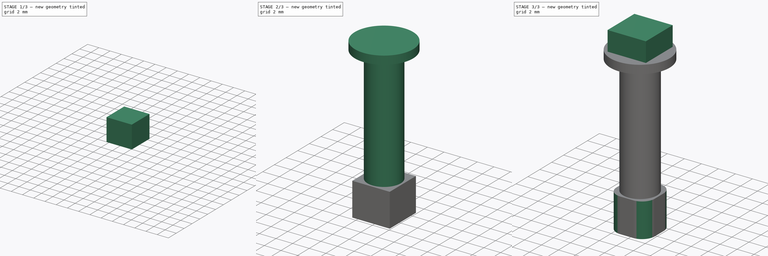
[diagram: build sequence overview — one tinted view per stage of 3, left to right]
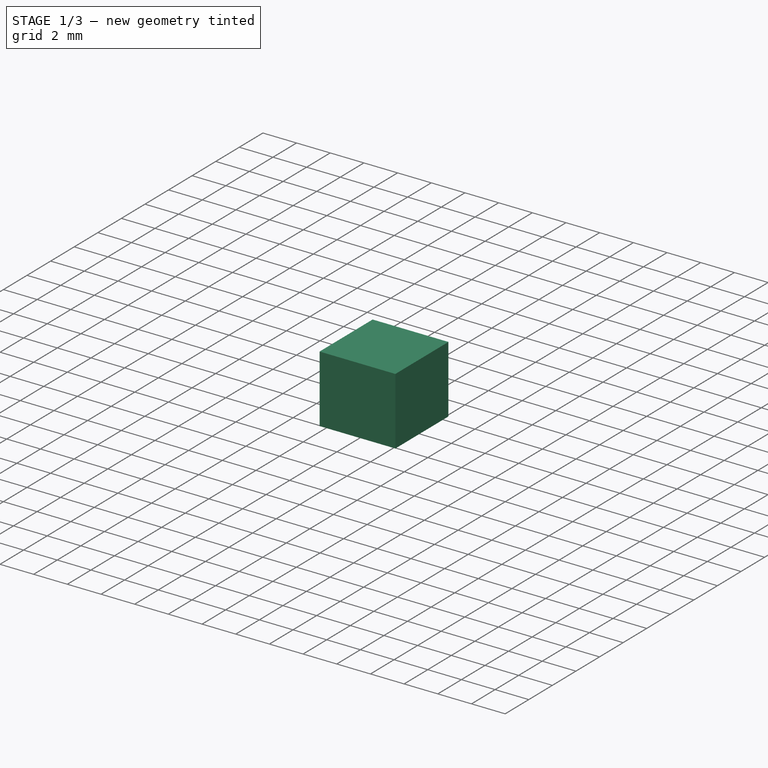
[diagram: stage 1 of 3 — iso view after this stage's code; geometry added in this stage tinted green]
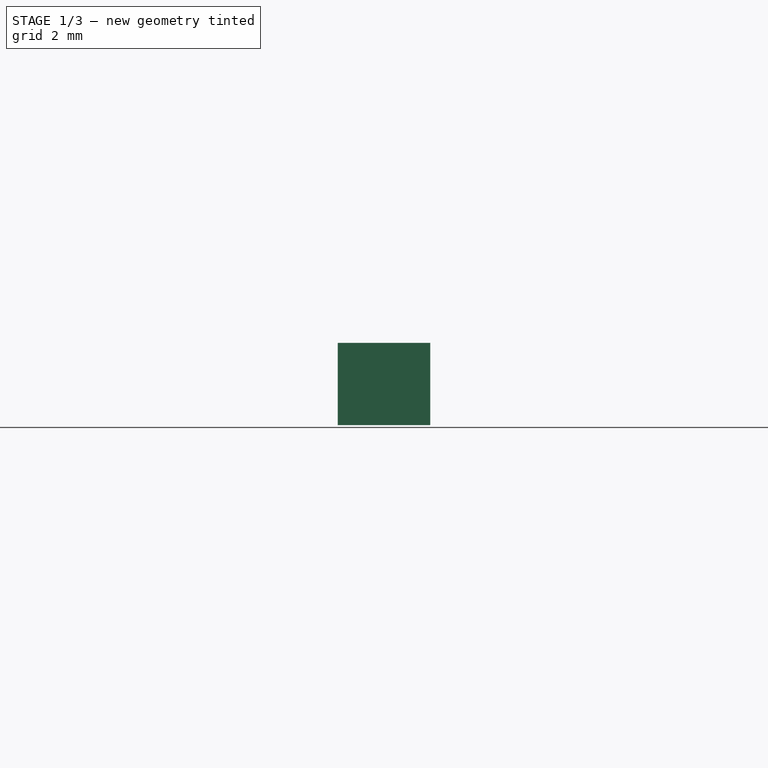
[diagram: stage 1 of 3 — front view after this stage's code; geometry added in this stage tinted green]
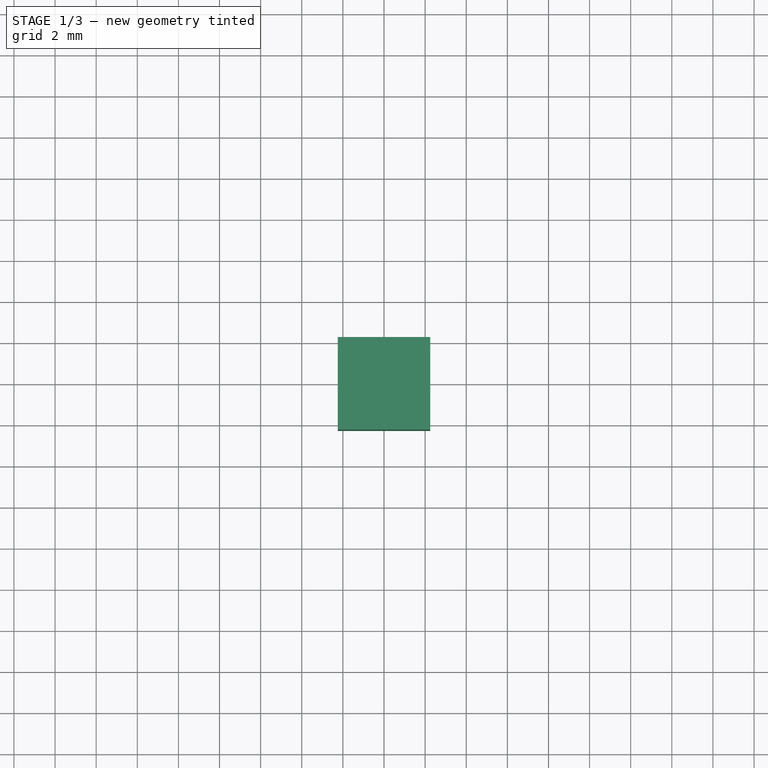
[diagram: stage 1 of 3 — top view after this stage's code; geometry added in this stage tinted green]
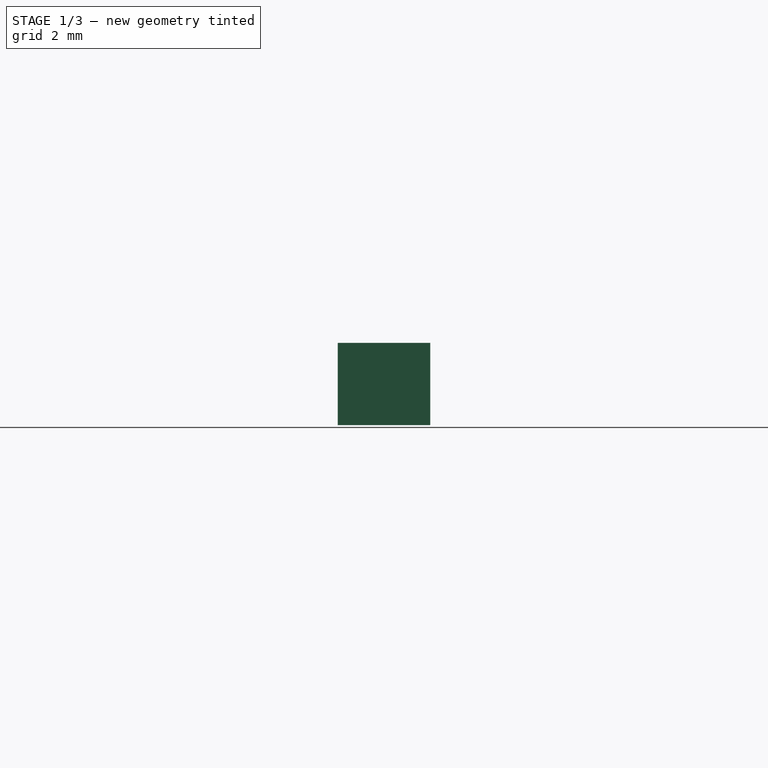
[diagram: stage 1 of 3 — right view after this stage's code; geometry added in this stage tinted green]
FCSTD DOCUMENT  (FreeCAD 0.16R)
Label: Base
License: All rights reserved
LicenseURL: http://en.wikipedia.org/wiki/All_rights_reserved
objects: Sketcher::SketchObject×5, PartDesign::Pad×4, PartDesign::Pocket×1, PartDesign::Fillet×1
note: 16 computed .brp shape members not serialized (recipe doc carries the construction recipe); baked Part::Feature solids carry a one-line shape summary decoded from their .brp

FEATURE [Sketcher::SketchObject] Sketch
  sketch-geometry (4):
    g0: LineSegment StartX=-2.25 StartY=2.25 StartZ=0 EndX=2.25 EndY=2.25 EndZ=0
    g1: LineSegment StartX=2.25 StartY=2.25 StartZ=0 EndX=2.25 EndY=-2.25 EndZ=0
    g2: LineSegment StartX=2.25 StartY=-2.25 StartZ=0 EndX=-2.25 EndY=-2.25 EndZ=0
    g3: LineSegment StartX=-2.25 StartY=-2.25 StartZ=0 EndX=-2.25 EndY=2.25 EndZ=0
  constraints (12):
    c: Coincident(g0,g1)
    c: Coincident(g1,g2)
    c: Coincident(g2,g3)
    c: Coincident(g3,g0)
    c: Horizontal(g0)
    c: Horizontal(g2)
    c: Vertical(g1)
    c: Vertical(g3)
    c: Distance(g0) = 4.5
    c: Distance(g3) = 4.5
    c: DistanceY(g-1,g2) = -2.25
    c: DistanceX(g-2,g0) = 2.25
FEATURE [PartDesign::Pad] Pad
  Length = 4
  Length2 = 100
  Sketch = -> Sketch
  Type = 0
FEATURE [Sketcher::SketchObject] Sketch001
  Placement = pos=(0,0,0) rot=(1,0,0;3.14159rad)
  Support = -> Pad [Face5]
  sketch-geometry (4):
    g0: LineSegment StartX=-1.3 StartY=1.3 StartZ=0 EndX=1.3 EndY=1.3 EndZ=0
    g1: LineSegment StartX=1.3 StartY=1.3 StartZ=0 EndX=1.3 EndY=-1.3 EndZ=0
    g2: LineSegment StartX=1.3 StartY=-1.3 StartZ=0 EndX=-1.3 EndY=-1.3 EndZ=0
    g3: LineSegment StartX=-1.3 StartY=-1.3 StartZ=0 EndX=-1.3 EndY=1.3 EndZ=0
  constraints (12):
    c: Coincident(g0,g1)
    c: Coincident(g1,g2)
    c: Coincident(g2,g3)
    c: Coincident(g3,g0)
    c: Horizontal(g0)
    c: Horizontal(g2)
    c: Vertical(g1)
    c: Vertical(g3)
    c: Distance(g2) = 2.6
    c: Distance(g1) = 2.6
    c: DistanceY(g-1,g1) = -1.3
    c: DistanceX(g-2,g2) = -1.3
FEATURE [PartDesign::Pocket] Pocket
  Length = 2.4
  Sketch = -> Sketch001
  Type = 0
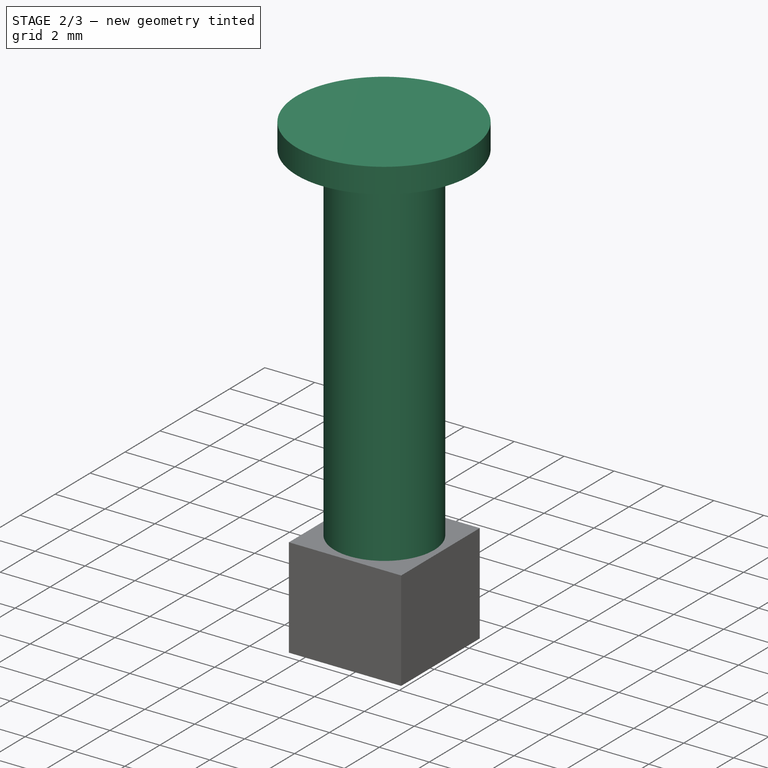
[diagram: stage 2 of 3 — iso view after this stage's code; geometry added in this stage tinted green]
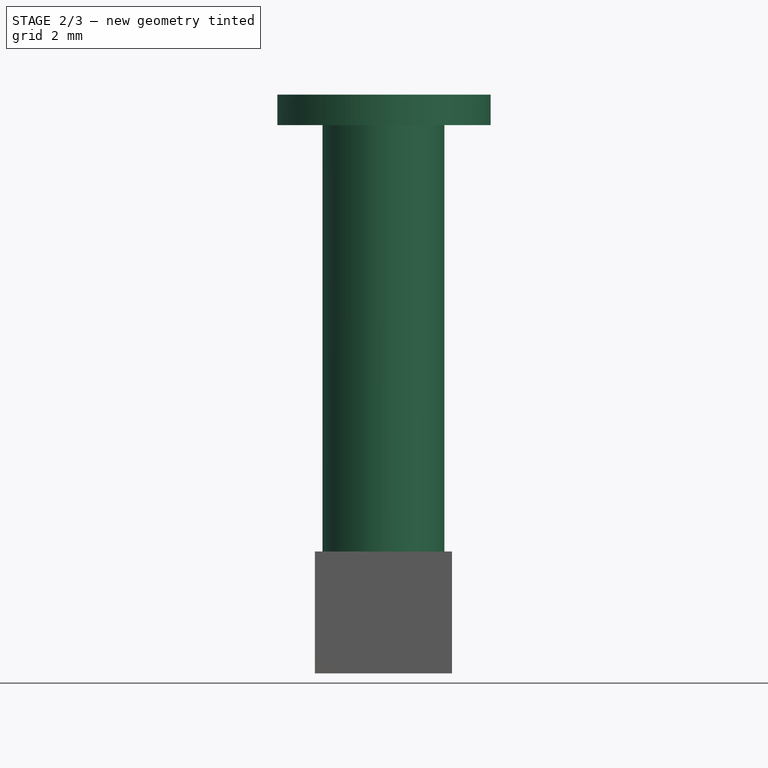
[diagram: stage 2 of 3 — front view after this stage's code; geometry added in this stage tinted green]
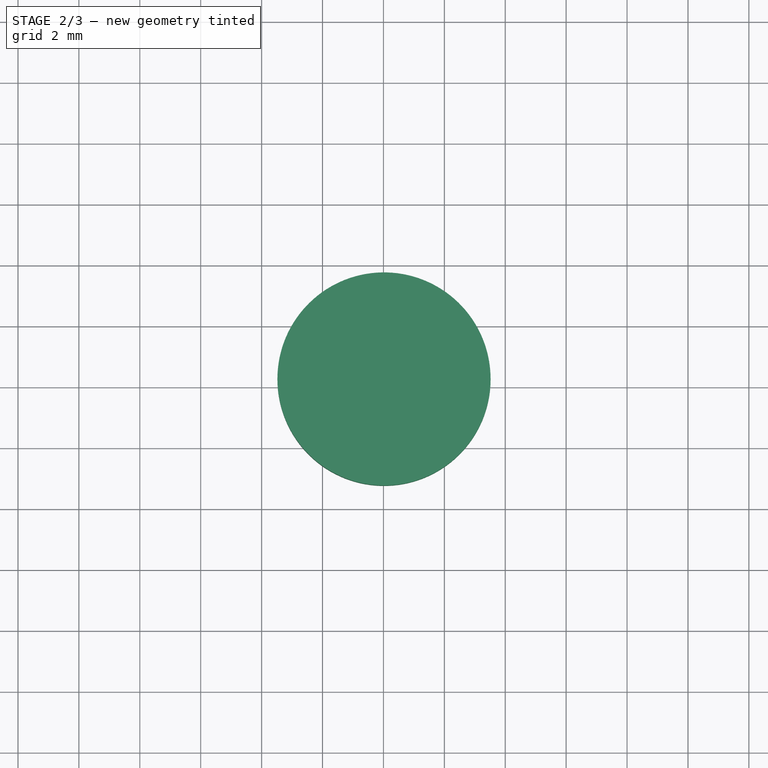
[diagram: stage 2 of 3 — top view after this stage's code; geometry added in this stage tinted green]
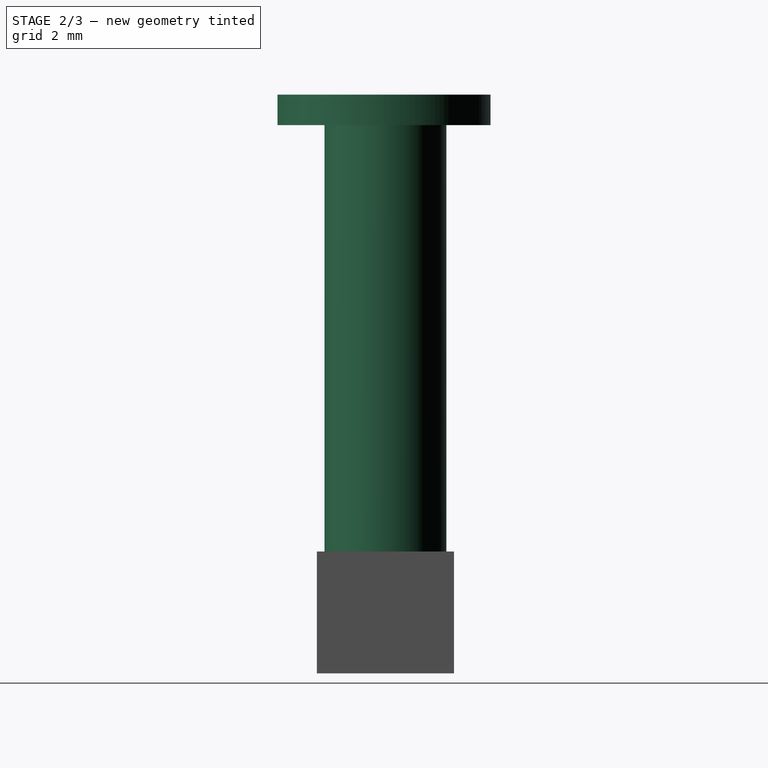
[diagram: stage 2 of 3 — right view after this stage's code; geometry added in this stage tinted green]
FEATURE [Sketcher::SketchObject] Sketch002
  Placement = pos=(0,0,4) rot=(0,0,1;0rad)
  Support = -> Pocket [Face5]
  sketch-geometry (1):
    g0: Circle CenterX=0 CenterY=0 CenterZ=0 NormalX=0 NormalY=0 NormalZ=1 Radius=2
  constraints (2):
    c: Coincident(g0,g-1)
    c: Radius(g0) = 2
FEATURE [PartDesign::Pad] Pad001
  Length = 14
  Length2 = 100
  Sketch = -> Sketch002
  Type = 0
FEATURE [Sketcher::SketchObject] Sketch003
  Placement = pos=(0,0,18) rot=(0,0,1;0rad)
  Support = -> Pad001 [Face13]
  sketch-geometry (1):
    g0: Circle CenterX=0.018734 CenterY=-0.046847 CenterZ=0 NormalX=0 NormalY=0 NormalZ=1 Radius=3.5
  constraints (1):
    c: Radius(g0) = 3.5
FEATURE [PartDesign::Pad] Pad002
  Length = 1
  Length2 = 100
  Sketch = -> Sketch003
  Type = 0
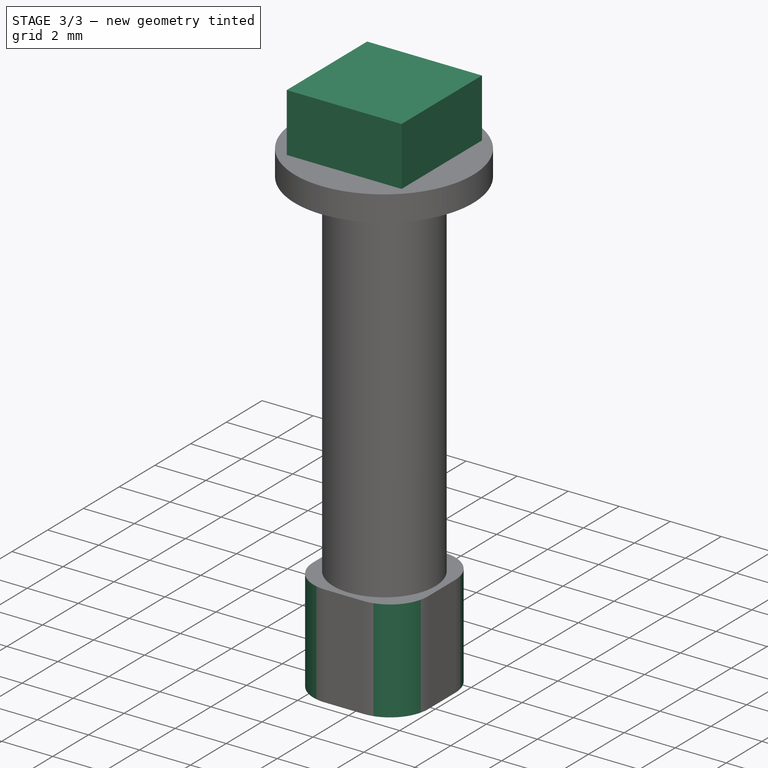
[diagram: stage 3 of 3 — iso view after this stage's code; geometry added in this stage tinted green]
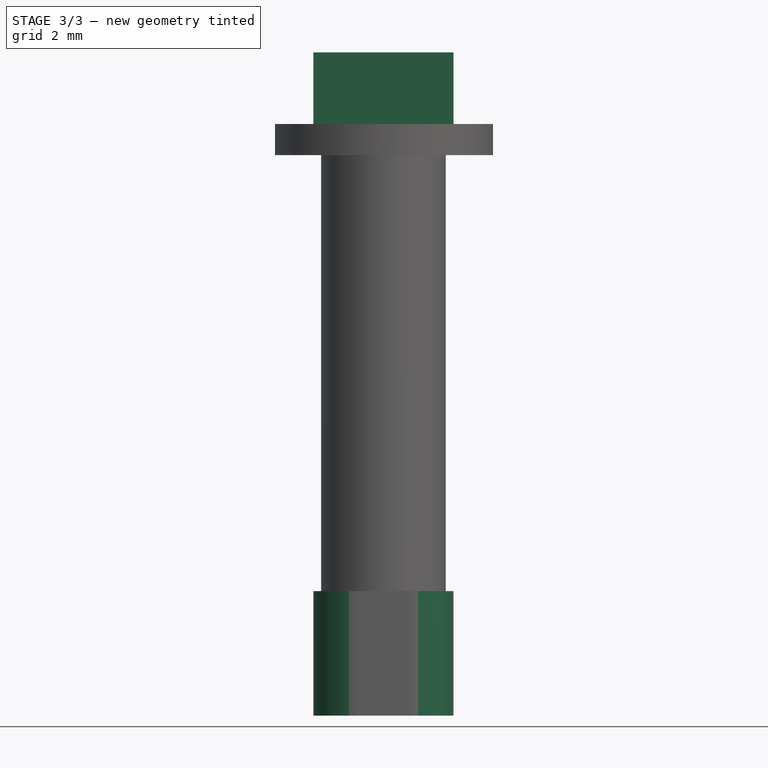
[diagram: stage 3 of 3 — front view after this stage's code; geometry added in this stage tinted green]
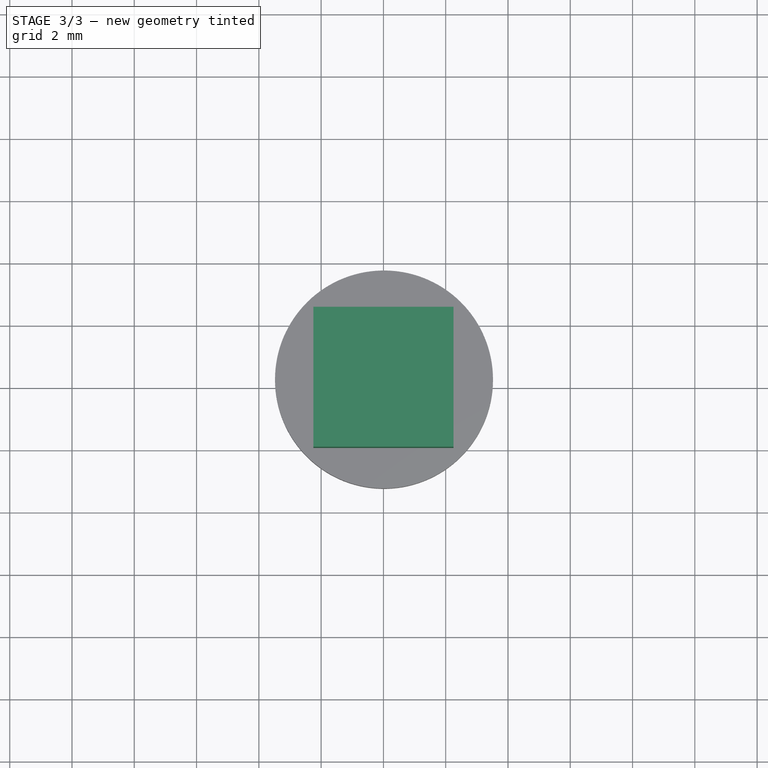
[diagram: stage 3 of 3 — top view after this stage's code; geometry added in this stage tinted green]
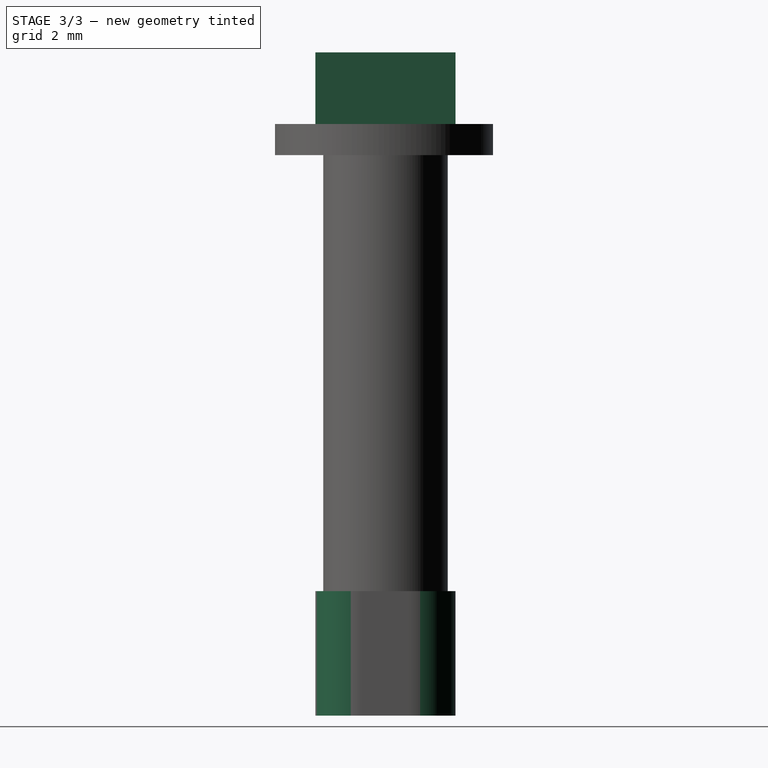
[diagram: stage 3 of 3 — right view after this stage's code; geometry added in this stage tinted green]
FEATURE [Sketcher::SketchObject] Sketch004
  Placement = pos=(0,0,19) rot=(0,0,1;0rad)
  Support = -> Pad002 [Face15]
  sketch-geometry (4):
    g0: LineSegment StartX=-2.25 StartY=2.25 StartZ=0 EndX=2.25 EndY=2.25 EndZ=0
    g1: LineSegment StartX=2.25 StartY=2.25 StartZ=0 EndX=2.25 EndY=-2.25 EndZ=0
    g2: LineSegment StartX=2.25 StartY=-2.25 StartZ=0 EndX=-2.25 EndY=-2.25 EndZ=0
    g3: LineSegment StartX=-2.25 StartY=-2.25 StartZ=0 EndX=-2.25 EndY=2.25 EndZ=0
  constraints (12):
    c: Coincident(g0,g1)
    c: Coincident(g1,g2)
    c: Coincident(g2,g3)
    c: Coincident(g3,g0)
    c: Horizontal(g0)
    c: Horizontal(g2)
    c: Vertical(g1)
    c: Vertical(g3)
    c: Distance(g0) = 4.5
    c: Distance(g3) = 4.5
    c: DistanceY(g-1,g0) = 2.25
    c: DistanceX(g-2,g0) = -2.25
FEATURE [PartDesign::Pad] Pad003
  Length = 2.3
  Length2 = 100
  Sketch = -> Sketch004
  Type = 0
FEATURE [PartDesign::Fillet] Fillet
  Base = -> Pad003 [Edge1,Edge2,Edge5,Edge8]
  Radius = 1.5
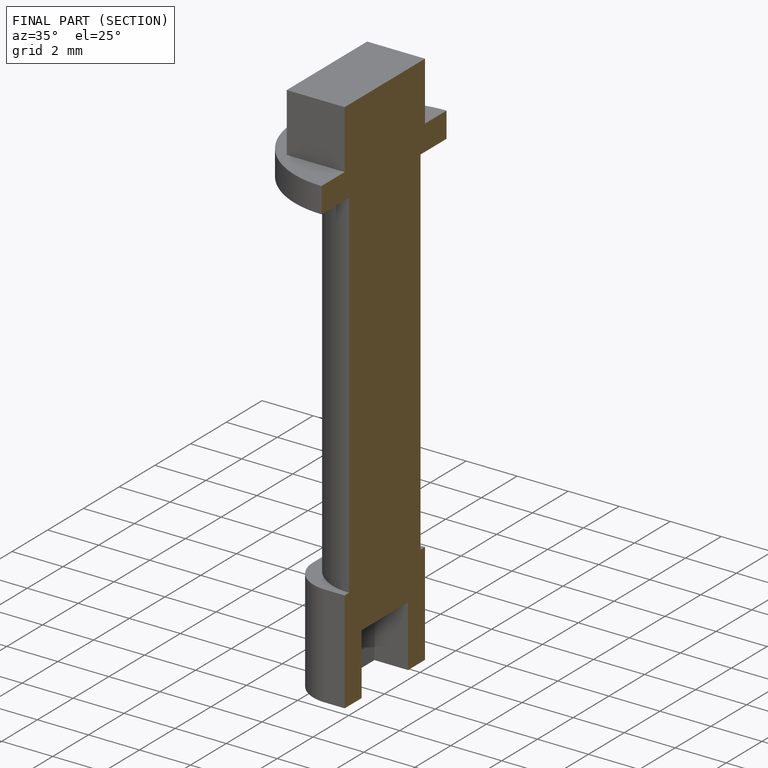
[diagram: finished part — half-section view (interior)]
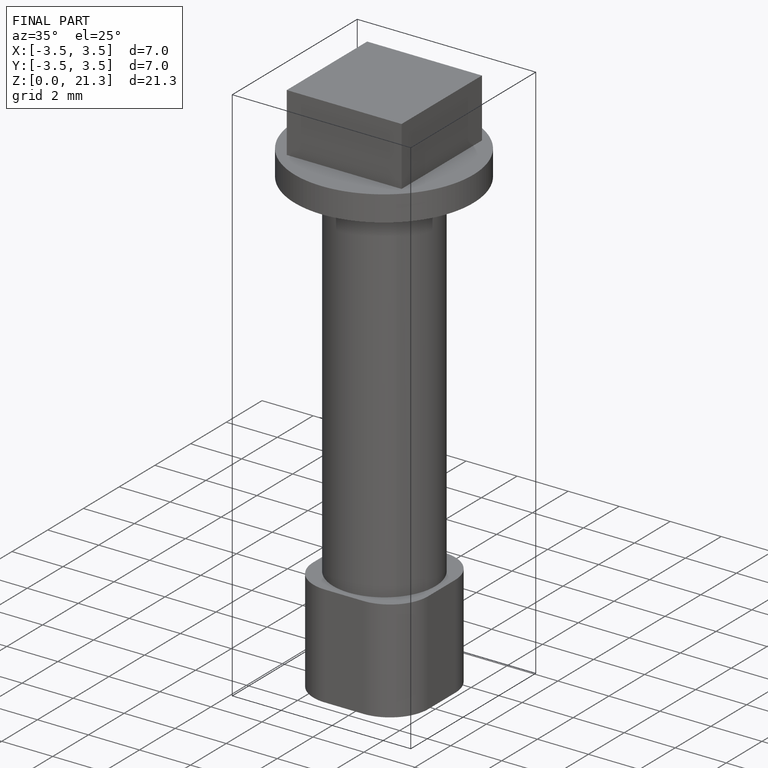
[diagram: finished part — iso view with bounding-box wireframe]
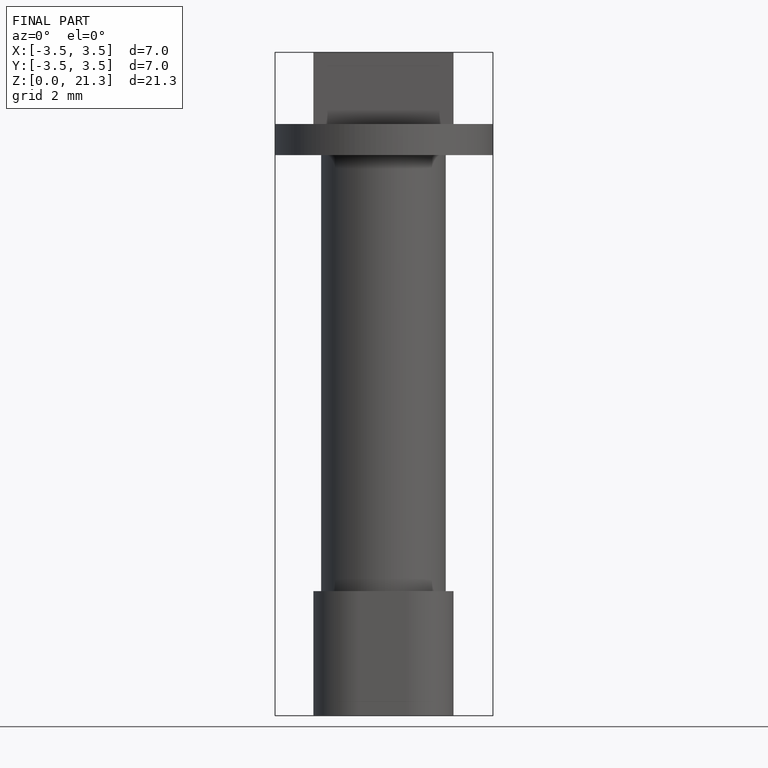
[diagram: finished part — front view with bounding-box wireframe]
